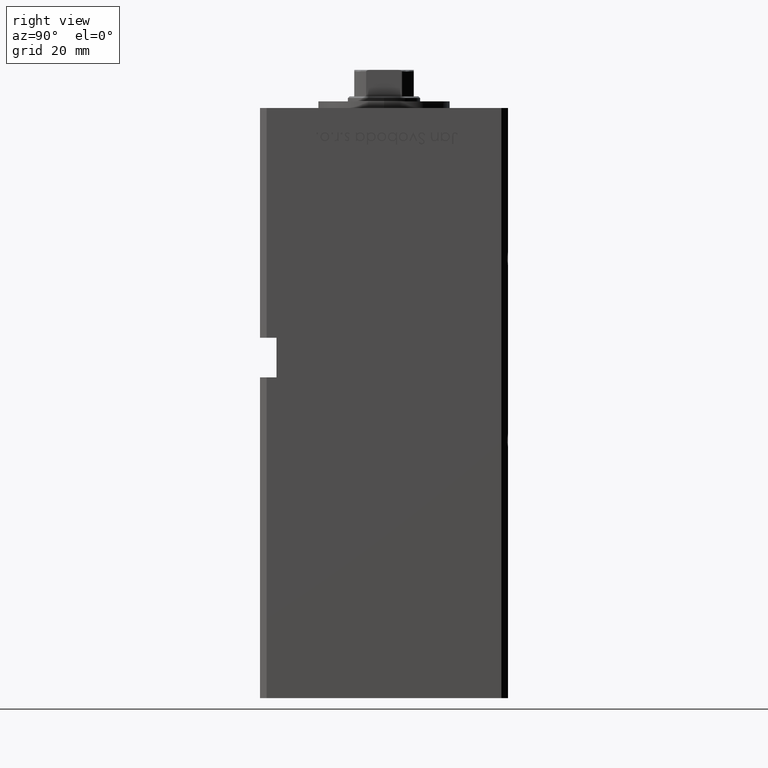
[diagram: clean part render]
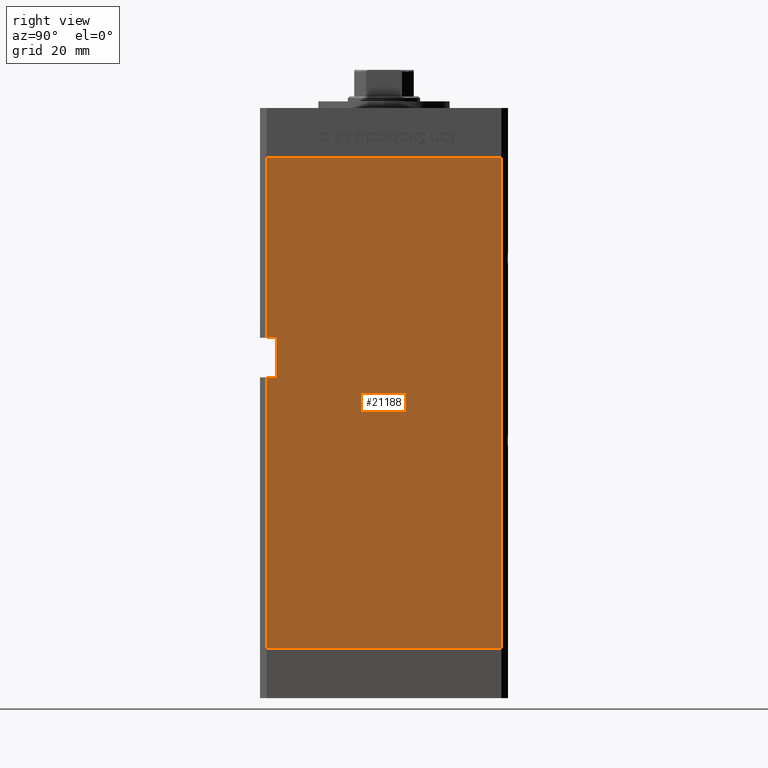
[diagram: same view with one face highlighted and labeled with its STEP entity id]
A machine part, right view. The second image highlights one B-rep face of the part: STEP entity #21188.
In plain terms, the highlighted planar face has unit normal (1, -0, 0).
Its self-contained STEP definition (entity closure, byte-faithful):
#7 = CARTESIAN_POINT ( 'NONE',  ( 42.50000000000001421, 35.50000000000000711, 148.5000000000000000 ) ) ;
#1221 = CARTESIAN_POINT ( 'NONE',  ( 42.49999999999998579, -32.50000000000000711, 94.00000000000000000 ) ) ;
#1256 = EDGE_CURVE ( 'NONE', #1306, #52455, #25292, .T. ) ;
#1306 = VERTEX_POINT ( 'NONE', #16667 ) ;
#1904 = DIRECTION ( 'NONE',  ( -3.909236002201255146E-16, -1.000000000000000000, 0.000000000000000000 ) ) ;
#3497 = EDGE_CURVE ( 'NONE', #52455, #51833, #19389, .T. ) ;
#4624 = CARTESIAN_POINT ( 'NONE',  ( 42.49999999999998579, -32.50000000000000711, 94.00000000000000000 ) ) ;
#5886 = ORIENTED_EDGE ( 'NONE', *, *, #26578, .T. ) ;
#6851 = CARTESIAN_POINT ( 'NONE',  ( 42.49999999999998579, -35.50000000000000711, 82.00000000000000000 ) ) ;
#6899 = PLANE ( 'NONE',  #22354 ) ;
#7691 = DIRECTION ( 'NONE',  ( 1.000000000000000000, -3.909236002201255146E-16, 0.000000000000000000 ) ) ;
#8750 = VECTOR ( 'NONE', #1904, 1000.000000000000000 ) ;
#10060 = DIRECTION ( 'NONE',  ( -0.000000000000000000, -0.000000000000000000, 1.000000000000000000 ) ) ;
#11327 = VERTEX_POINT ( 'NONE', #40567 ) ;
#11724 = CARTESIAN_POINT ( 'NONE',  ( 42.50000000000001421, 35.50000000000000711, 148.5000000000000000 ) ) ;
#11927 = CARTESIAN_POINT ( 'NONE',  ( 42.49999999999998579, -35.50000000000000711, 94.00000000000000000 ) ) ;
#12248 = FACE_OUTER_BOUND ( 'NONE', #13920, .T. ) ;
#12325 = CARTESIAN_POINT ( 'NONE',  ( 42.50000000000001421, 35.50000000000000711, 0.000000000000000000 ) ) ;
#13226 = LINE ( 'NONE', #4624, #32557 ) ;
#13330 = CARTESIAN_POINT ( 'NONE',  ( 42.49999999999998579, -32.50000000000000711, 82.00000000000000000 ) ) ;
#13920 = EDGE_LOOP ( 'NONE', ( #40289, #37465, #20694, #50056, #5886, #29012, #51576, #32299 ) ) ;
#16395 = DIRECTION ( 'NONE',  ( -0.000000000000000000, -0.000000000000000000, -1.000000000000000000 ) ) ;
#16667 = CARTESIAN_POINT ( 'NONE',  ( 42.50000000000001421, 35.50000000000000711, 148.5000000000000000 ) ) ;
#16725 = VERTEX_POINT ( 'NONE', #33512 ) ;
#18156 = VECTOR ( 'NONE', #27643, 1000.000000000000000 ) ;
#19389 = LINE ( 'NONE', #35811, #46653 ) ;
#20694 = ORIENTED_EDGE ( 'NONE', *, *, #3497, .F. ) ;
#21114 = DIRECTION ( 'NONE',  ( -0.000000000000000000, -0.000000000000000000, -1.000000000000000000 ) ) ;
#21188 = ADVANCED_FACE ( 'NONE', ( #12248 ), #6899, .T. ) ;
#22061 = LINE ( 'NONE', #39042, #8750 ) ;
#22354 = AXIS2_PLACEMENT_3D ( 'NONE', #11724, #7691, #32438 ) ;
#22693 = CARTESIAN_POINT ( 'NONE',  ( 42.49999999999998579, -35.50000000000000711, 148.5000000000000000 ) ) ;
#24347 = VECTOR ( 'NONE', #21114, 1000.000000000000000 ) ;
#25292 = LINE ( 'NONE', #7, #33646 ) ;
#26578 = EDGE_CURVE ( 'NONE', #1306, #30179, #22061, .T. ) ;
#27643 = DIRECTION ( 'NONE',  ( -0.000000000000000000, -0.000000000000000000, -1.000000000000000000 ) ) ;
#28923 = CARTESIAN_POINT ( 'NONE',  ( 42.49999999999998579, -35.50000000000000711, 148.5000000000000000 ) ) ;
#29012 = ORIENTED_EDGE ( 'NONE', *, *, #52650, .T. ) ;
#29647 = DIRECTION ( 'NONE',  ( -0.000000000000000000, -1.000000000000000000, -0.000000000000000000 ) ) ;
#30179 = VERTEX_POINT ( 'NONE', #22693 ) ;
#30526 = LINE ( 'NONE', #1221, #35193 ) ;
#32299 = ORIENTED_EDGE ( 'NONE', *, *, #46854, .F. ) ;
#32438 = DIRECTION ( 'NONE',  ( 3.909236002201255146E-16, 1.000000000000000000, 0.000000000000000000 ) ) ;
#32557 = VECTOR ( 'NONE', #29647, 1000.000000000000000 ) ;
#33512 = CARTESIAN_POINT ( 'NONE',  ( 42.49999999999998579, -32.50000000000000000, 82.00000000000000000 ) ) ;
#33646 = VECTOR ( 'NONE', #16395, 1000.000000000000000 ) ;
#35193 = VECTOR ( 'NONE', #10060, 1000.000000000000000 ) ;
#35678 = EDGE_CURVE ( 'NONE', #53021, #51833, #45622, .T. ) ;
#35811 = CARTESIAN_POINT ( 'NONE',  ( 42.50000000000001421, 35.50000000000000711, 0.000000000000000000 ) ) ;
#35976 = LINE ( 'NONE', #39493, #18156 ) ;
#37465 = ORIENTED_EDGE ( 'NONE', *, *, #35678, .T. ) ;
#37478 = CARTESIAN_POINT ( 'NONE',  ( 42.49999999999998579, -35.50000000000000711, 0.000000000000000000 ) ) ;
#39042 = CARTESIAN_POINT ( 'NONE',  ( 42.50000000000001421, 35.50000000000000711, 148.5000000000000000 ) ) ;
#39493 = CARTESIAN_POINT ( 'NONE',  ( 42.49999999999998579, -35.50000000000000711, 148.5000000000000000 ) ) ;
#40289 = ORIENTED_EDGE ( 'NONE', *, *, #52821, .T. ) ;
#40567 = CARTESIAN_POINT ( 'NONE',  ( 42.49999999999998579, -32.50000000000000711, 94.00000000000000000 ) ) ;
#41440 = VERTEX_POINT ( 'NONE', #11927 ) ;
#42933 = DIRECTION ( 'NONE',  ( -0.000000000000000000, -1.000000000000000000, -0.000000000000000000 ) ) ;
#45160 = EDGE_CURVE ( 'NONE', #11327, #41440, #13226, .T. ) ;
#45622 = LINE ( 'NONE', #28923, #24347 ) ;
#46653 = VECTOR ( 'NONE', #52229, 1000.000000000000000 ) ;
#46711 = LINE ( 'NONE', #13330, #49120 ) ;
#46854 = EDGE_CURVE ( 'NONE', #16725, #11327, #30526, .T. ) ;
#49120 = VECTOR ( 'NONE', #42933, 1000.000000000000000 ) ;
#50056 = ORIENTED_EDGE ( 'NONE', *, *, #1256, .F. ) ;
#51576 = ORIENTED_EDGE ( 'NONE', *, *, #45160, .F. ) ;
#51833 = VERTEX_POINT ( 'NONE', #37478 ) ;
#52229 = DIRECTION ( 'NONE',  ( -3.909236002201255146E-16, -1.000000000000000000, 0.000000000000000000 ) ) ;
#52455 = VERTEX_POINT ( 'NONE', #12325 ) ;
#52650 = EDGE_CURVE ( 'NONE', #30179, #41440, #35976, .T. ) ;
#52821 = EDGE_CURVE ( 'NONE', #16725, #53021, #46711, .T. ) ;
#53021 = VERTEX_POINT ( 'NONE', #6851 ) ;